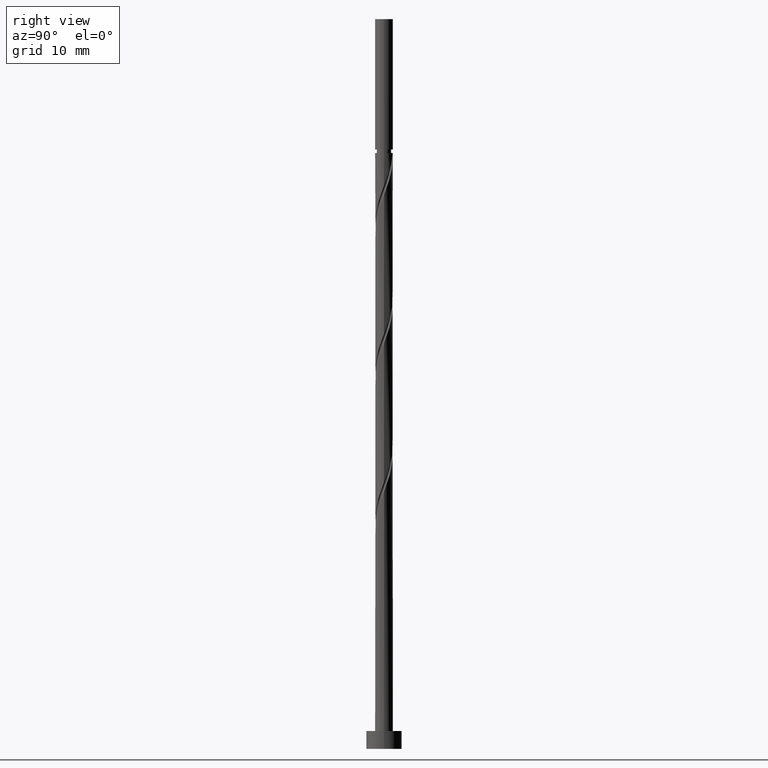
[diagram: clean part render]
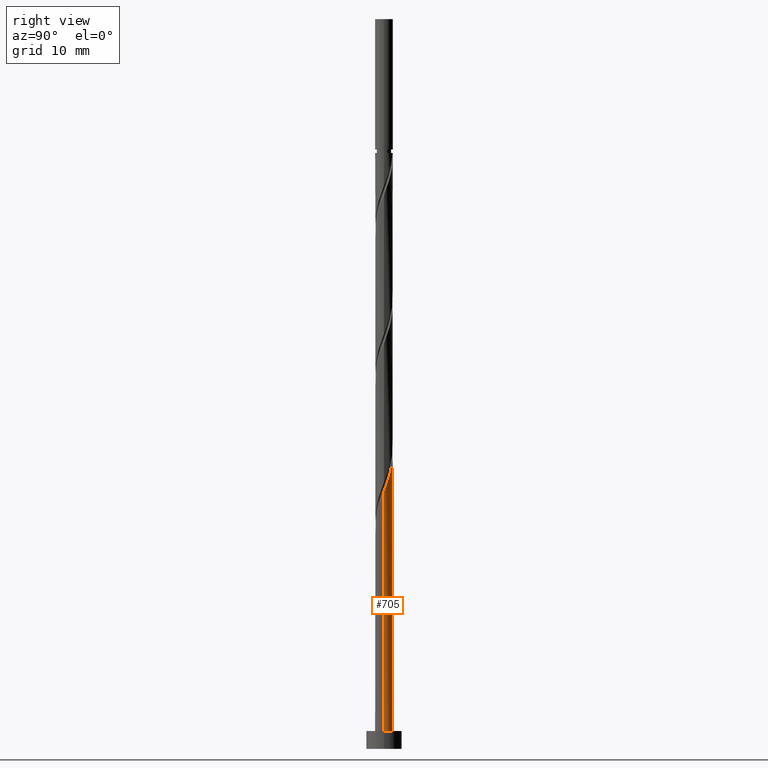
[diagram: same view with one face highlighted and labeled with its STEP entity id]
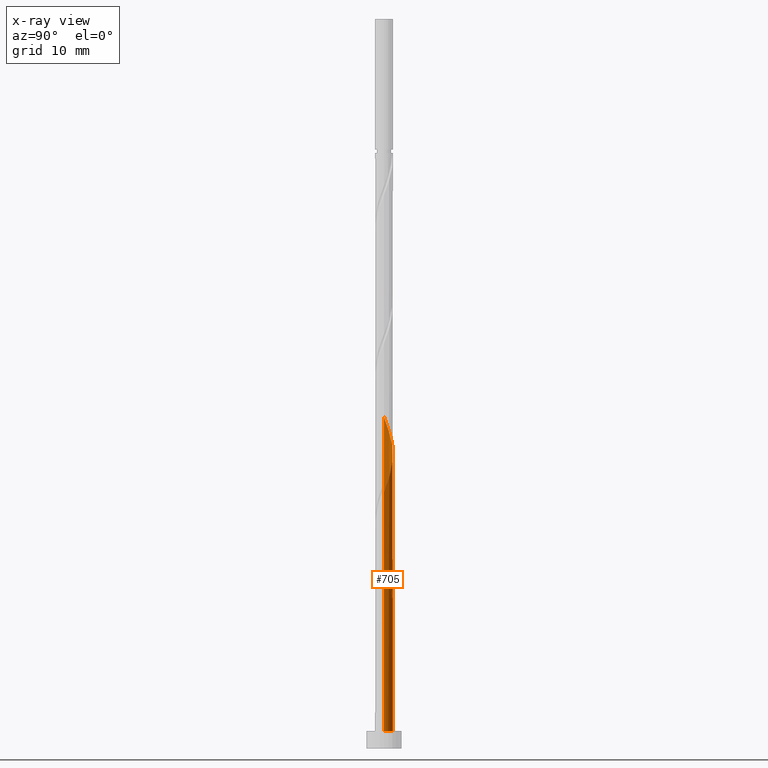
[diagram: x-ray of the same camera — body ghosted, the highlighted face saturated]
A machine part, right view. The second image highlights one B-rep face of the part: STEP entity #705.
The next image is the same camera in x-ray: the body ghosted, the highlighted face saturated — about 0% of this face is hidden behind the body in this view.
In plain terms, the highlighted cylindrical surface (edge-blend (fillet) strip) has radius 1 mm, axis along (-0, -0, -1).
Its self-contained STEP definition (entity closure, byte-faithful):
#10 = CARTESIAN_POINT ( 'NONE',  ( 0.000000000000000000, 0.000000000000000000, 2.000000000000000000 ) ) ;
#14 = CYLINDRICAL_SURFACE ( 'NONE', #974, 1.000000000000000000 ) ;
#15 = CARTESIAN_POINT ( 'NONE',  ( -0.3225635862758358119, 0.9628312089533854756, 18.34292608263520208 ) ) ;
#39 = CARTESIAN_POINT ( 'NONE',  ( 0.000000000000000000, 0.000000000000000000, 16.95403719374631635 ) ) ;
#52 = ORIENTED_EDGE ( 'NONE', *, *, #1322, .F. ) ;
#59 = ORIENTED_EDGE ( 'NONE', *, *, #263, .F. ) ;
#76 = CARTESIAN_POINT ( 'NONE',  ( -0.9482036394194113260, 0.3176631206038655342, 36.39848163819077342 ) ) ;
#85 = VECTOR ( 'NONE', #217, 1000.000000000000000 ) ;
#93 = CARTESIAN_POINT ( 'NONE',  ( 0.9996671490029762630, 0.02579905432887138680, 28.99107423078336154 ) ) ;
#105 = CARTESIAN_POINT ( 'NONE',  ( -1.000000000000001554, 9.030418540514747156E-13, 21.65155874873267905 ) ) ;
#106 = EDGE_CURVE ( 'NONE', #1362, #1211, #879, .T. ) ;
#117 = CARTESIAN_POINT ( 'NONE',  ( -0.9999999999999896749, 0.01290167433246948783, 21.61754137480151527 ) ) ;
#122 = CARTESIAN_POINT ( 'NONE',  ( -0.9951180796480328938, 0.2020673444260054352, 21.12070386041297354 ) ) ;
#151 = CARTESIAN_POINT ( 'NONE',  ( -0.6725544933721968599, 0.7607638645273803180, 18.34292608263520918 ) ) ;
#217 = DIRECTION ( 'NONE',  ( -0.000000000000000000, -0.000000000000000000, -1.000000000000000000 ) ) ;
#221 = CARTESIAN_POINT ( 'NONE',  ( -1.000000000000001554, 1.178310986386221321E-15, 37.25651563875756977 ) ) ;
#238 = CARTESIAN_POINT ( 'NONE',  ( 1.000000000000001554, -1.187647840478029667E-15, 28.92318230542424828 ) ) ;
#249 = CARTESIAN_POINT ( 'NONE',  ( -1.000000000000001554, 1.178310986386221321E-15, 20.58984897209091258 ) ) ;
#251 = DIRECTION ( 'NONE',  ( -1.000000000000000000, 0.000000000000000000, 0.000000000000000000 ) ) ;
#253 = ORIENTED_EDGE ( 'NONE', *, *, #536, .T. ) ;
#263 = EDGE_CURVE ( 'NONE', #865, #489, #306, .T. ) ;
#272 = EDGE_CURVE ( 'NONE', #865, #1077, #851, .T. ) ;
#288 = CARTESIAN_POINT ( 'NONE',  ( -0.1989974874213181200, 0.9800000000000029798, 16.95403719374631635 ) ) ;
#306 =( BOUNDED_CURVE ( )  B_SPLINE_CURVE ( 2, ( #628, #515, #1195, #151, #1095, #868, #1329, #389, #723 ),
 .UNSPECIFIED., .F., .T. ) 
 B_SPLINE_CURVE_WITH_KNOTS ( ( 3, 2, 2, 2, 3 ),
 ( 0.000000000000000000, 0.01388888888888883955, 0.02777777777777779011, 0.04166666666666662966, 0.05452480538552929162 ),
 .UNSPECIFIED. ) 
 CURVE ( )  GEOMETRIC_REPRESENTATION_ITEM ( )  RATIONAL_B_SPLINE_CURVE ( ( 0.9090909090909282675, 0.8952797754656627305, 0.9090909090909282675, 0.8952797754656627305, 0.9090909090909282675, 0.8952797754656627305, 0.9090909090909282675, 0.8963047551056025908, 0.9071930855141409067 ) ) 
 REPRESENTATION_ITEM ( '' )  );
#340 = CIRCLE ( 'NONE', #1244, 1.000000000000000000 ) ;
#343 = CARTESIAN_POINT ( 'NONE',  ( -0.9996671490029767071, 0.02579905432887138680, 21.58366682337594256 ) ) ;
#367 = AXIS2_PLACEMENT_3D ( 'NONE', #39, #1106, #968 ) ;
#388 = EDGE_CURVE ( 'NONE', #1362, #1046, #523, .T. ) ;
#389 = CARTESIAN_POINT ( 'NONE',  ( -1.000000000000001332, 0.1630543718204603698, 20.15992945972527650 ) ) ;
#415 = CARTESIAN_POINT ( 'NONE',  ( 0.1481832699744076165, 0.9889599175394798714, 32.69477793448706393 ) ) ;
#458 = EDGE_CURVE ( 'NONE', #489, #1398, #1035, .T. ) ;
#489 = VERTEX_POINT ( 'NONE', #249 ) ;
#504 = CARTESIAN_POINT ( 'NONE',  ( -1.000000000000001554, 9.030418540514747156E-13, 21.65155874873267550 ) ) ;
#511 = ORIENTED_EDGE ( 'NONE', *, *, #388, .F. ) ;
#515 = CARTESIAN_POINT ( 'NONE',  ( -0.3717979285156143288, 0.9449113738744308044, 17.41700015670928181 ) ) ;
#523 =( BOUNDED_CURVE ( )  B_SPLINE_CURVE ( 2, ( #552, #759, #93, #1008, #1246, #1471, #1017, #781, #909, #1478, #415, #1372, #892, #1364, #1257, #751, #1221, #642, #76, #535, #988 ),
 .UNSPECIFIED., .F., .T. ) 
 B_SPLINE_CURVE_WITH_KNOTS ( ( 3, 2, 2, 2, 2, 2, 2, 2, 2, 2, 3 ),
 ( 0.1795248053855292569, 0.1805555555555555802, 0.1944444444444444198, 0.2083333333333333703, 0.2222222222222222099, 0.2361111111111111605, 0.2500000000000000000, 0.2638888888888888395, 0.2777777777777777901, 0.2916666666666666297, 0.3045248053855293957 ),
 .UNSPECIFIED. ) 
 CURVE ( )  GEOMETRIC_REPRESENTATION_ITEM ( )  RATIONAL_B_SPLINE_CURVE ( ( 0.9071930855141407957, 0.9080659294509884072, 0.9090909090909282675, 0.8952797754656627305, 0.9090909090909282675, 0.8952797754656627305, 0.9090909090909282675, 0.8952797754656627305, 0.9090909090909282675, 0.8952797754656627305, 0.9090909090909282675, 0.8952797754656627305, 0.9090909090909282675, 0.8952797754656627305, 0.9090909090909282675, 0.8952797754656627305, 0.9090909090909282675, 0.8952797754656627305, 0.9090909090909282675, 0.8963047551056024798, 0.9071930855141410177 ) ) 
 REPRESENTATION_ITEM ( '' )  );
#535 = CARTESIAN_POINT ( 'NONE',  ( -1.000000000000001554, 0.1630543718204590931, 36.82659612639194791 ) ) ;
#536 = EDGE_CURVE ( 'NONE', #1211, #1398, #340, .T. ) ;
#552 = CARTESIAN_POINT ( 'NONE',  ( 1.000000000000001554, -1.187647840478029667E-15, 28.92318230542424828 ) ) ;
#554 = DIRECTION ( 'NONE',  ( -0.000000000000000000, -0.000000000000000000, -1.000000000000000000 ) ) ;
#562 = ORIENTED_EDGE ( 'NONE', *, *, #106, .T. ) ;
#570 = CARTESIAN_POINT ( 'NONE',  ( -0.1481832699744068949, 0.9889599175394803154, 17.87996311967224017 ) ) ;
#583 = ORIENTED_EDGE ( 'NONE', *, *, #458, .F. ) ;
#590 = CARTESIAN_POINT ( 'NONE',  ( -0.9305560469009568347, 0.3661494825560558386, 20.65774089745002229 ) ) ;
#598 = CARTESIAN_POINT ( 'NONE',  ( 0.02619704632702208116, 1.015088626125574711, 17.41700015670927826 ) ) ;
#606 = ORIENTED_EDGE ( 'NONE', *, *, #765, .F. ) ;
#628 = CARTESIAN_POINT ( 'NONE',  ( -0.1989974874213181200, 0.9800000000000029798, 16.95403719374631635 ) ) ;
#642 = CARTESIAN_POINT ( 'NONE',  ( -0.8921910604809025758, 0.4848570054394682471, 35.93551867522779730 ) ) ;
#651 = CARTESIAN_POINT ( 'NONE',  ( 1.000000000000000000, 1.224646799147353207E-16, 82.00000000000000000 ) ) ;
#657 = CARTESIAN_POINT ( 'NONE',  ( 0.1989974874213185918, 0.9800000000000027578, 16.95403719374631635 ) ) ;
#677 = CARTESIAN_POINT ( 'NONE',  ( 1.000000000000000000, 1.224646799147353207E-16, 2.000000000000000000 ) ) ;
#685 = FACE_OUTER_BOUND ( 'NONE', #1383, .T. ) ;
#687 = CARTESIAN_POINT ( 'NONE',  ( -0.4774909380590706687, 0.8786366735297770347, 18.80588904559816399 ) ) ;
#695 = DIRECTION ( 'NONE',  ( 1.000000000000000000, 0.000000000000000000, 0.000000000000000000 ) ) ;
#705 = ADVANCED_FACE ( 'NONE', ( #685 ), #14, .T. ) ;
#723 = CARTESIAN_POINT ( 'NONE',  ( -1.000000000000001554, 1.178310986386221321E-15, 20.58984897209091258 ) ) ;
#748 = ORIENTED_EDGE ( 'NONE', *, *, #272, .T. ) ;
#751 = CARTESIAN_POINT ( 'NONE',  ( -0.6725544933721968599, 0.7607638645273803180, 35.00959274930186638 ) ) ;
#759 = CARTESIAN_POINT ( 'NONE',  ( 1.000000000000001332, 0.01290167433201710144, 28.95719967935659511 ) ) ;
#765 = EDGE_CURVE ( 'NONE', #1046, #1444, #935, .T. ) ;
#781 = CARTESIAN_POINT ( 'NONE',  ( 0.6324182898423054144, 0.7944421381061682608, 31.30588904559816754 ) ) ;
#788 = CARTESIAN_POINT ( 'NONE',  ( -1.000000000000000000, 0.000000000000000000, 82.00000000000000000 ) ) ;
#814 = CARTESIAN_POINT ( 'NONE',  ( 0.000000000000000000, 0.000000000000000000, 82.00000000000000000 ) ) ;
#851 = CIRCLE ( 'NONE', #367, 1.000000000000000000 ) ;
#865 = VERTEX_POINT ( 'NONE', #288 ) ;
#868 = CARTESIAN_POINT ( 'NONE',  ( -0.8921910604809025758, 0.4848570054394682471, 19.26885200856113656 ) ) ;
#879 = LINE ( 'NONE', #651, #1151 ) ;
#892 = CARTESIAN_POINT ( 'NONE',  ( -0.1989974874213180367, 0.9800000000000029798, 33.62070386041298775 ) ) ;
#909 = CARTESIAN_POINT ( 'NONE',  ( 0.4774909380590708907, 0.8786366735297767017, 31.76885200856113656 ) ) ;
#935 = LINE ( 'NONE', #1381, #85 ) ;
#947 = CARTESIAN_POINT ( 'NONE',  ( -0.8659940141538805536, 0.5302316206861061865, 20.19477793448704972 ) ) ;
#968 = DIRECTION ( 'NONE',  ( -1.000000000000000000, 0.000000000000000000, 0.000000000000000000 ) ) ;
#974 = AXIS2_PLACEMENT_3D ( 'NONE', #814, #1262, #251 ) ;
#988 = CARTESIAN_POINT ( 'NONE',  ( -1.000000000000001554, 1.178310986386221518E-15, 37.25651563875757688 ) ) ;
#1008 = CARTESIAN_POINT ( 'NONE',  ( 0.9951180796480328938, 0.2020673444260051854, 29.45403719374631990 ) ) ;
#1017 = CARTESIAN_POINT ( 'NONE',  ( 0.7492061519980929285, 0.6623368793961375012, 30.84292608263520563 ) ) ;
#1035 = LINE ( 'NONE', #788, #1217 ) ;
#1046 = VERTEX_POINT ( 'NONE', #221 ) ;
#1057 = CARTESIAN_POINT ( 'NONE',  ( -0.7492061519980932616, 0.6623368793961373902, 19.73181497152410557 ) ) ;
#1059 = DIRECTION ( 'NONE',  ( -0.000000000000000000, -0.000000000000000000, -1.000000000000000000 ) ) ;
#1077 = VERTEX_POINT ( 'NONE', #657 ) ;
#1095 = CARTESIAN_POINT ( 'NONE',  ( -0.7823727769265499399, 0.6228104349834241438, 18.80588904559817109 ) ) ;
#1106 = DIRECTION ( 'NONE',  ( 0.000000000000000000, 0.000000000000000000, -1.000000000000000000 ) ) ;
#1121 =( BOUNDED_CURVE ( )  B_SPLINE_CURVE ( 2, ( #105, #117, #343, #122, #590, #947, #1057, #1390, #687, #15, #570, #598, #1282 ),
 .UNSPECIFIED., .F., .T. ) 
 B_SPLINE_CURVE_WITH_KNOTS ( ( 3, 2, 2, 2, 2, 2, 3 ),
 ( 0.9295248053855653669, 0.9305555555555555802, 0.9444444444444444198, 0.9583333333333333703, 0.9722222222222222099, 0.9861111111111111605, 1.000000000000000000 ),
 .UNSPECIFIED. ) 
 CURVE ( )  GEOMETRIC_REPRESENTATION_ITEM ( )  RATIONAL_B_SPLINE_CURVE ( ( 0.9071930855141921990, 0.9080659294510144974, 0.9090909090909183865, 0.8952797754656529605, 0.9090909090909183865, 0.8952797754656529605, 0.9090909090909183865, 0.8952797754656529605, 0.9090909090909183865, 0.8952797754656529605, 0.9090909090909183865, 0.8952797754656529605, 0.9090909090909183865 ) ) 
 REPRESENTATION_ITEM ( '' )  );
#1151 = VECTOR ( 'NONE', #554, 1000.000000000000000 ) ;
#1195 = CARTESIAN_POINT ( 'NONE',  ( -0.5221762109439057609, 0.8528376192009056167, 17.87996311967224372 ) ) ;
#1210 = CARTESIAN_POINT ( 'NONE',  ( -1.000000000000000000, 0.000000000000000000, 2.000000000000000000 ) ) ;
#1211 = VERTEX_POINT ( 'NONE', #677 ) ;
#1217 = VECTOR ( 'NONE', #1059, 1000.000000000000000 ) ;
#1221 = CARTESIAN_POINT ( 'NONE',  ( -0.7823727769265499399, 0.6228104349834241438, 35.47255571226484250 ) ) ;
#1244 = AXIS2_PLACEMENT_3D ( 'NONE', #10, #1283, #695 ) ;
#1246 = CARTESIAN_POINT ( 'NONE',  ( 0.9305560469009569458, 0.3661494825560553945, 29.91700015670929247 ) ) ;
#1257 = CARTESIAN_POINT ( 'NONE',  ( -0.5221762109439057609, 0.8528376192009056167, 34.54662978633891868 ) ) ;
#1262 = DIRECTION ( 'NONE',  ( -0.000000000000000000, -0.000000000000000000, -1.000000000000000000 ) ) ;
#1282 = CARTESIAN_POINT ( 'NONE',  ( 0.1989974874213185640, 0.9800000000000027578, 16.95403719374631635 ) ) ;
#1283 = DIRECTION ( 'NONE',  ( 0.000000000000000000, 0.000000000000000000, 1.000000000000000000 ) ) ;
#1322 = EDGE_CURVE ( 'NONE', #1444, #1077, #1121, .T. ) ;
#1329 = CARTESIAN_POINT ( 'NONE',  ( -0.9482036394194113260, 0.3176631206038655342, 19.73181497152410202 ) ) ;
#1362 = VERTEX_POINT ( 'NONE', #238 ) ;
#1364 = CARTESIAN_POINT ( 'NONE',  ( -0.3717979285156143288, 0.9449113738744308044, 34.08366682337594256 ) ) ;
#1372 = CARTESIAN_POINT ( 'NONE',  ( -0.02619704632702204994, 1.015088626125574267, 33.15774089745001874 ) ) ;
#1381 = CARTESIAN_POINT ( 'NONE',  ( -1.000000000000000000, 0.000000000000000000, 82.00000000000000000 ) ) ;
#1383 = EDGE_LOOP ( 'NONE', ( #511, #562, #253, #583, #59, #748, #52, #606 ) ) ;
#1390 = CARTESIAN_POINT ( 'NONE',  ( -0.6324182898423054144, 0.7944421381061683718, 19.26885200856112945 ) ) ;
#1398 = VERTEX_POINT ( 'NONE', #1210 ) ;
#1444 = VERTEX_POINT ( 'NONE', #504 ) ;
#1471 = CARTESIAN_POINT ( 'NONE',  ( 0.8659940141538808867, 0.5302316206861056314, 30.37996311967223662 ) ) ;
#1478 = CARTESIAN_POINT ( 'NONE',  ( 0.3225635862758363670, 0.9628312089533850315, 32.23181497152408781 ) ) ;